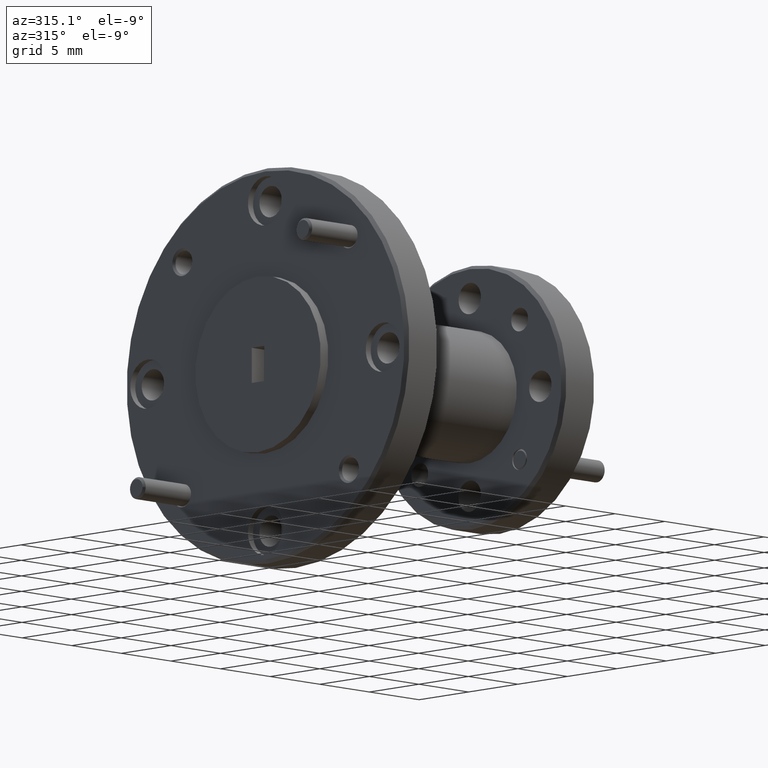
[diagram: clean part render]
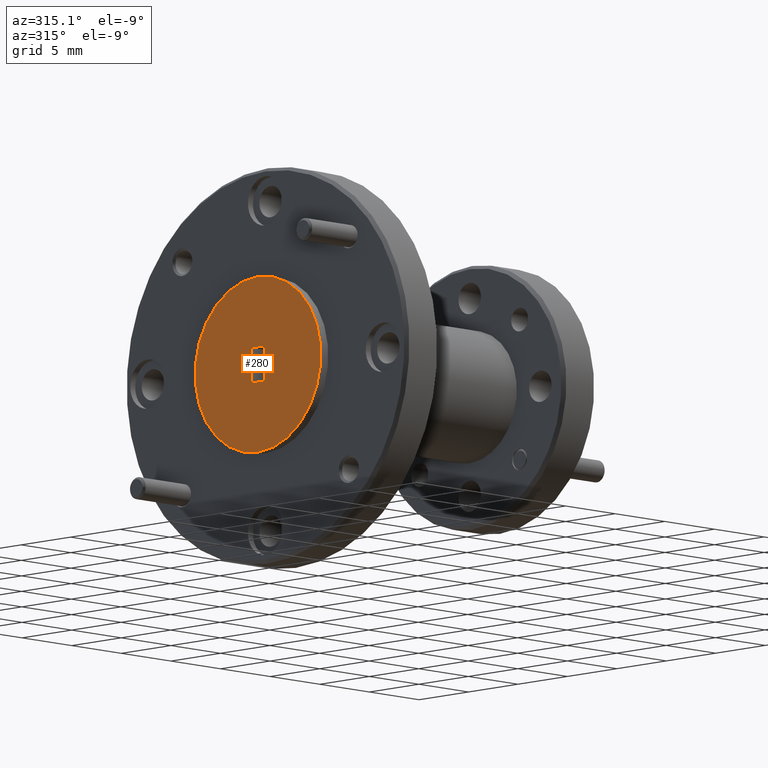
[diagram: same view with one face highlighted and labeled with its STEP entity id]
A machine part, auxiliary view. The second image highlights one B-rep face of the part: STEP entity #280.
In plain terms, the highlighted planar face has unit normal (1, -0, -0).
Its self-contained STEP definition (entity closure, byte-faithful):
#30 = VERTEX_POINT ( 'NONE', #1622 ) ;
#57 = VECTOR ( 'NONE', #3064, 39.37007874015748100 ) ;
#71 = CARTESIAN_POINT ( 'NONE',  ( -2.126036104178505900, 0.8961428545117683400, 0.2661954922081256600 ) ) ;
#85 = DIRECTION ( 'NONE',  ( 1.223697833026643800E-160, 1.000000000000000000, 6.254953049456297600E-111 ) ) ;
#118 = FACE_OUTER_BOUND ( 'NONE', #620, .T. ) ;
#152 = CARTESIAN_POINT ( 'NONE',  ( -2.126036104178505900, 0.8461428545117681800, 0.3161954922081256500 ) ) ;
#179 = VERTEX_POINT ( 'NONE', #2228 ) ;
#196 = EDGE_LOOP ( 'NONE', ( #1899, #1937, #229, #1831 ) ) ;
#229 = ORIENTED_EDGE ( 'NONE', *, *, #1214, .T. ) ;
#280 = ADVANCED_FACE ( 'NONE', ( #118, #1342 ), #802, .F. ) ;
#440 = ORIENTED_EDGE ( 'NONE', *, *, #859, .F. ) ;
#489 = DIRECTION ( 'NONE',  ( 0.0000000000000000000, 0.0000000000000000000, 1.000000000000000000 ) ) ;
#512 = DIRECTION ( 'NONE',  ( 1.000000000000000000, -1.598615139904834900E-061, -1.956366136326174500E-050 ) ) ;
#520 = CARTESIAN_POINT ( 'NONE',  ( -2.126036104178505900, 0.8711428545117682100, 0.2661954922081256600 ) ) ;
#620 = EDGE_LOOP ( 'NONE', ( #2613, #440 ) ) ;
#802 = PLANE ( 'NONE',  #2723 ) ;
#848 = VECTOR ( 'NONE', #2509, 39.37007874015748100 ) ;
#859 = EDGE_CURVE ( 'NONE', #2406, #1383, #2239, .T. ) ;
#1103 = EDGE_CURVE ( 'NONE', #30, #1156, #3593, .T. ) ;
#1156 = VERTEX_POINT ( 'NONE', #3097 ) ;
#1214 = EDGE_CURVE ( 'NONE', #179, #1156, #1567, .T. ) ;
#1278 = CARTESIAN_POINT ( 'NONE',  ( -2.126036104178505900, 0.8461428545117681800, 0.2161954922081256400 ) ) ;
#1342 = FACE_BOUND ( 'NONE', #196, .T. ) ;
#1383 = VERTEX_POINT ( 'NONE', #2586 ) ;
#1567 = LINE ( 'NONE', #1278, #2348 ) ;
#1622 = CARTESIAN_POINT ( 'NONE',  ( -2.126036104178505900, 0.8961428545117683400, 0.3161954922081256500 ) ) ;
#1831 = ORIENTED_EDGE ( 'NONE', *, *, #1103, .F. ) ;
#1853 = CARTESIAN_POINT ( 'NONE',  ( -2.126036104178505900, 0.8461428545117681800, 0.2661954922081256600 ) ) ;
#1899 = ORIENTED_EDGE ( 'NONE', *, *, #2486, .T. ) ;
#1937 = ORIENTED_EDGE ( 'NONE', *, *, #3873, .F. ) ;
#2197 = LINE ( 'NONE', #3758, #3213 ) ;
#2228 = CARTESIAN_POINT ( 'NONE',  ( -2.126036104178505900, 0.8461428545117681800, 0.2161954922081256400 ) ) ;
#2239 = CIRCLE ( 'NONE', #3320, 0.2500000000000000000 ) ;
#2280 = AXIS2_PLACEMENT_3D ( 'NONE', #2765, #2496, #3349 ) ;
#2348 = VECTOR ( 'NONE', #85, 39.37007874015748100 ) ;
#2395 = DIRECTION ( 'NONE',  ( 1.598615139904834900E-061, 1.000000000000000000, 0.0000000000000000000 ) ) ;
#2406 = VERTEX_POINT ( 'NONE', #3115 ) ;
#2486 = EDGE_CURVE ( 'NONE', #30, #2685, #2197, .T. ) ;
#2496 = DIRECTION ( 'NONE',  ( 1.000000000000000000, -1.598615139904834900E-061, -1.956366136326174500E-050 ) ) ;
#2509 = DIRECTION ( 'NONE',  ( -3.127476524728148800E-111, 4.999631322127375800E-172, -1.000000000000000000 ) ) ;
#2586 = CARTESIAN_POINT ( 'NONE',  ( -2.126036104178505900, 0.8711428545117682100, 0.5161954922081256600 ) ) ;
#2613 = ORIENTED_EDGE ( 'NONE', *, *, #2655, .F. ) ;
#2655 = EDGE_CURVE ( 'NONE', #1383, #2406, #3080, .T. ) ;
#2685 = VERTEX_POINT ( 'NONE', #152 ) ;
#2723 = AXIS2_PLACEMENT_3D ( 'NONE', #520, #3244, #2395 ) ;
#2765 = CARTESIAN_POINT ( 'NONE',  ( -2.126036104178505900, 0.8711428545117682100, 0.2661954922081256600 ) ) ;
#2944 = LINE ( 'NONE', #1853, #57 ) ;
#3064 = DIRECTION ( 'NONE',  ( 3.127476524728148800E-111, -4.999631322127375800E-172, 1.000000000000000000 ) ) ;
#3080 = CIRCLE ( 'NONE', #2280, 0.2500000000000000000 ) ;
#3097 = CARTESIAN_POINT ( 'NONE',  ( -2.126036104178505900, 0.8961428545117683400, 0.2161954922081256400 ) ) ;
#3115 = CARTESIAN_POINT ( 'NONE',  ( -2.126036104178505900, 0.8711428545117682100, 0.01619549220812566500 ) ) ;
#3213 = VECTOR ( 'NONE', #3463, 39.37007874015748100 ) ;
#3223 = CARTESIAN_POINT ( 'NONE',  ( -2.126036104178505900, 0.8711428545117682100, 0.2661954922081256600 ) ) ;
#3244 = DIRECTION ( 'NONE',  ( 1.000000000000000000, -1.598615139904834900E-061, -3.127476524728148800E-111 ) ) ;
#3320 = AXIS2_PLACEMENT_3D ( 'NONE', #3223, #512, #489 ) ;
#3349 = DIRECTION ( 'NONE',  ( 0.0000000000000000000, 0.0000000000000000000, 1.000000000000000000 ) ) ;
#3463 = DIRECTION ( 'NONE',  ( 0.0000000000000000000, -1.000000000000000000, 3.827368459301255000E-100 ) ) ;
#3593 = LINE ( 'NONE', #71, #848 ) ;
#3758 = CARTESIAN_POINT ( 'NONE',  ( -2.126036104178505900, 0.8461428545117681800, 0.3161954922081256500 ) ) ;
#3873 = EDGE_CURVE ( 'NONE', #179, #2685, #2944, .T. ) ;